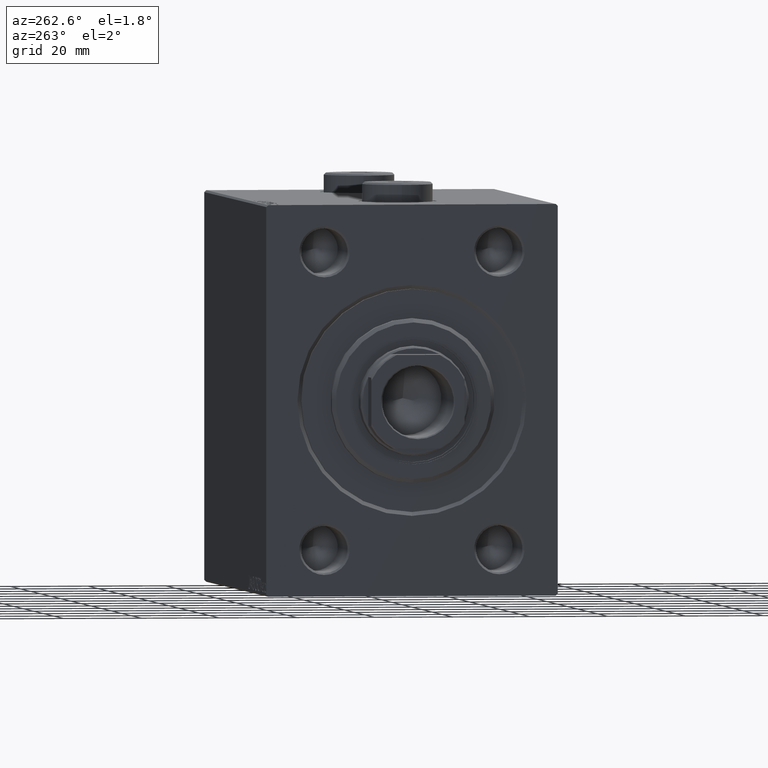
[diagram: clean part render]
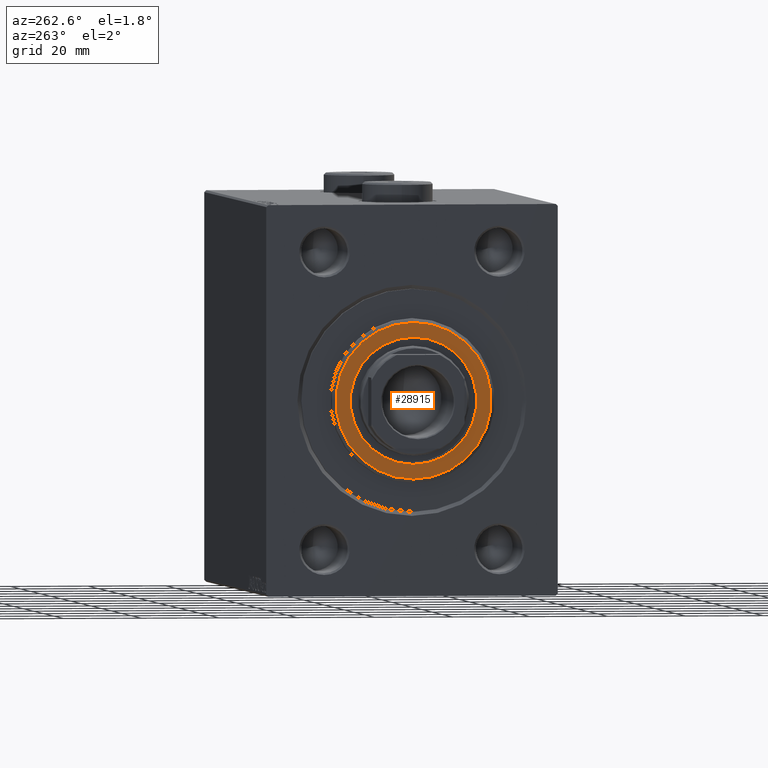
[diagram: same view with one face highlighted and labeled with its STEP entity id]
A machine part, auxiliary view. The second image highlights one B-rep face of the part: STEP entity #28915.
In plain terms, the highlighted planar face has unit normal (-1, 0, 0).
Its self-contained STEP definition (entity closure, byte-faithful):
#45 = AXIS2_PLACEMENT_3D ( 'NONE', #12120, #5196, #19281 ) ;
#1049 = FACE_OUTER_BOUND ( 'NONE', #8485, .T. ) ;
#1972 = DIRECTION ( 'NONE',  ( 1.000000000000000000, -0.000000000000000000, 0.000000000000000000 ) ) ;
#3604 = CIRCLE ( 'NONE', #39030, 19.99999999999999645 ) ;
#4395 = ORIENTED_EDGE ( 'NONE', *, *, #35509, .T. ) ;
#5196 = DIRECTION ( 'NONE',  ( 1.000000000000000000, 0.000000000000000000, 0.000000000000000000 ) ) ;
#7074 = EDGE_CURVE ( 'NONE', #14929, #35297, #28083, .T. ) ;
#8107 = EDGE_CURVE ( 'NONE', #33024, #14720, #23678, .T. ) ;
#8386 = AXIS2_PLACEMENT_3D ( 'NONE', #29605, #33077, #40247 ) ;
#8485 = EDGE_LOOP ( 'NONE', ( #4395, #18195 ) ) ;
#8667 = FACE_BOUND ( 'NONE', #39447, .T. ) ;
#9134 = DIRECTION ( 'NONE',  ( 1.000000000000000000, -0.000000000000000000, 0.000000000000000000 ) ) ;
#9804 = DIRECTION ( 'NONE',  ( 0.000000000000000000, 0.000000000000000000, -1.000000000000000000 ) ) ;
#12120 = CARTESIAN_POINT ( 'NONE',  ( 3.000000000000000000, 0.000000000000000000, 0.000000000000000000 ) ) ;
#12656 = AXIS2_PLACEMENT_3D ( 'NONE', #41030, #9134, #9804 ) ;
#13603 = EDGE_CURVE ( 'NONE', #35297, #14929, #36422, .T. ) ;
#14720 = VERTEX_POINT ( 'NONE', #28885 ) ;
#14929 = VERTEX_POINT ( 'NONE', #20540 ) ;
#15145 = DIRECTION ( 'NONE',  ( 0.000000000000000000, 0.000000000000000000, -1.000000000000000000 ) ) ;
#15473 = CARTESIAN_POINT ( 'NONE',  ( 3.000000000000000000, 1.990051048614449313E-15, 16.25000000000000000 ) ) ;
#18195 = ORIENTED_EDGE ( 'NONE', *, *, #8107, .T. ) ;
#19281 = DIRECTION ( 'NONE',  ( 0.000000000000000000, 0.000000000000000000, -1.000000000000000000 ) ) ;
#19601 = CARTESIAN_POINT ( 'NONE',  ( 3.000000000000000000, 0.000000000000000000, 0.000000000000000000 ) ) ;
#20398 = CARTESIAN_POINT ( 'NONE',  ( 3.000000000000000000, 2.510525938252074087E-15, -19.99999999999999645 ) ) ;
#20540 = CARTESIAN_POINT ( 'NONE',  ( 3.000000000000000000, 0.000000000000000000, -16.25000000000000000 ) ) ;
#22517 = PLANE ( 'NONE',  #31577 ) ;
#23678 = CIRCLE ( 'NONE', #12656, 19.99999999999999645 ) ;
#28083 = CIRCLE ( 'NONE', #45, 16.25000000000000000 ) ;
#28885 = CARTESIAN_POINT ( 'NONE',  ( 3.000000000000000000, 0.000000000000000000, 19.99999999999999645 ) ) ;
#28915 = ADVANCED_FACE ( 'NONE', ( #1049, #8667 ), #22517, .T. ) ;
#29605 = CARTESIAN_POINT ( 'NONE',  ( 3.000000000000000000, 0.000000000000000000, 0.000000000000000000 ) ) ;
#29686 = CARTESIAN_POINT ( 'NONE',  ( 3.000000000000000000, 0.000000000000000000, 0.000000000000000000 ) ) ;
#31577 = AXIS2_PLACEMENT_3D ( 'NONE', #29686, #1972, #15145 ) ;
#33024 = VERTEX_POINT ( 'NONE', #20398 ) ;
#33077 = DIRECTION ( 'NONE',  ( 1.000000000000000000, 0.000000000000000000, 0.000000000000000000 ) ) ;
#33934 = DIRECTION ( 'NONE',  ( 0.000000000000000000, 0.000000000000000000, -1.000000000000000000 ) ) ;
#35101 = ORIENTED_EDGE ( 'NONE', *, *, #13603, .F. ) ;
#35297 = VERTEX_POINT ( 'NONE', #15473 ) ;
#35509 = EDGE_CURVE ( 'NONE', #14720, #33024, #3604, .T. ) ;
#36422 = CIRCLE ( 'NONE', #8386, 16.25000000000000000 ) ;
#37175 = DIRECTION ( 'NONE',  ( 1.000000000000000000, -0.000000000000000000, 0.000000000000000000 ) ) ;
#39030 = AXIS2_PLACEMENT_3D ( 'NONE', #19601, #37175, #33934 ) ;
#39447 = EDGE_LOOP ( 'NONE', ( #41800, #35101 ) ) ;
#40247 = DIRECTION ( 'NONE',  ( 0.000000000000000000, 0.000000000000000000, -1.000000000000000000 ) ) ;
#41030 = CARTESIAN_POINT ( 'NONE',  ( 3.000000000000000000, 0.000000000000000000, 0.000000000000000000 ) ) ;
#41800 = ORIENTED_EDGE ( 'NONE', *, *, #7074, .F. ) ;